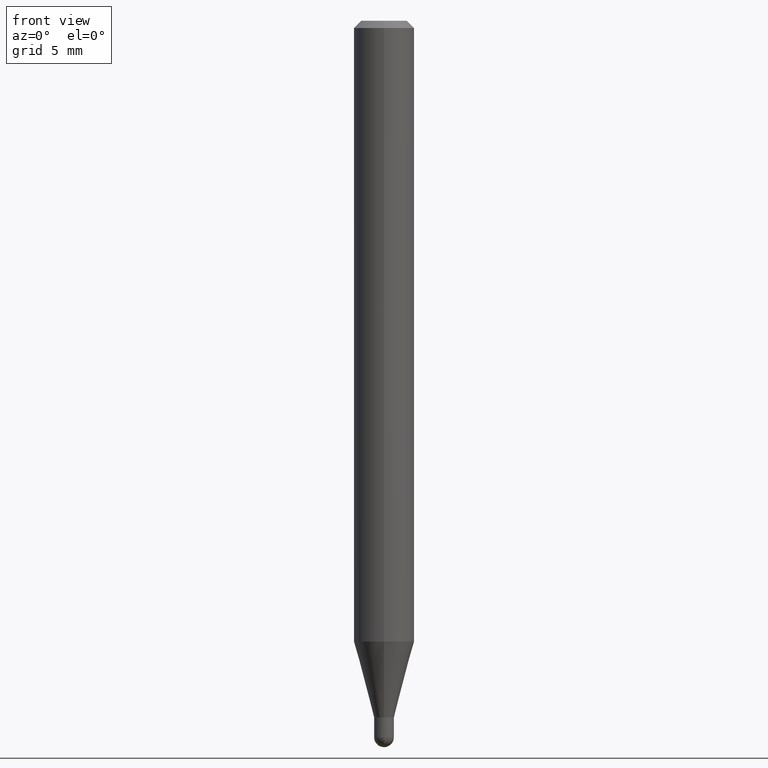
[diagram: clean part render]
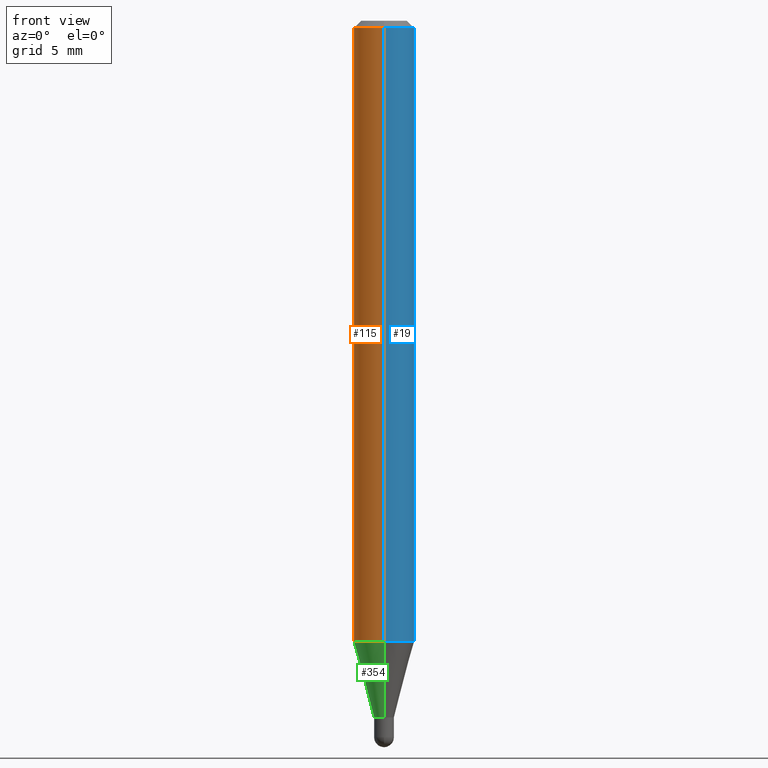
[diagram: same view with three faces highlighted in distinct colors, each labeled with its STEP entity id]
A machine part, front view with three faces highlighted in distinct colors.
Their STEP definitions:

[orange] entity #115 — the highlighted cylindrical surface (edge-blend (fillet) strip) has radius 1.5875 mm, axis along (-0, 0, 1).
#3 = EDGE_LOOP ( 'NONE', ( #249, #281, #219, #171 ) ) ;
#17 = CARTESIAN_POINT ( 'NONE',  ( -4.364351673553916201E-16, -0.06250000000000000000, 2.182166511817810202E-16 ) ) ;
#37 = DIRECTION ( 'NONE',  ( -6.982962677686265922E-15, -1.000000000000000000, 4.370956789862821150E-15 ) ) ;
#46 = DIRECTION ( 'NONE',  ( -6.982962677686265922E-15, -1.000000000000000000, 3.483106191921935554E-15 ) ) ;
#63 = CARTESIAN_POINT ( 'NONE',  ( 4.440892098500625669E-16, 0.06250000000000000000, -2.182166511817810202E-16 ) ) ;
#85 = EDGE_CURVE ( 'NONE', #479, #105, #495, .T. ) ;
#89 = DIRECTION ( 'NONE',  ( -2.445479224719817573E-29, 3.491466418908496323E-15, 1.000000000000000000 ) ) ;
#105 = VERTEX_POINT ( 'NONE', #389 ) ;
#108 = CARTESIAN_POINT ( 'NONE',  ( 0.000000000000000000, 0.000000000000000000, 0.000000000000000000 ) ) ;
#109 = CARTESIAN_POINT ( 'NONE',  ( 4.440892098500940720E-16, 0.06249999999999993755, -0.01500000000000022669 ) ) ;
#115 = ADVANCED_FACE ( 'NONE', ( #464 ), #431, .T. ) ;
#125 = VECTOR ( 'NONE', #190, 39.37007874015748143 ) ;
#147 = CARTESIAN_POINT ( 'NONE',  ( 3.134502450708113125E-29, -4.475200580731833085E-15, -1.281753866082112392 ) ) ;
#149 = AXIS2_PLACEMENT_3D ( 'NONE', #108, #386, #429 ) ;
#171 = ORIENTED_EDGE ( 'NONE', *, *, #218, .F. ) ;
#190 = DIRECTION ( 'NONE',  ( -2.445479224719817573E-29, 3.491466418908496323E-15, 1.000000000000000000 ) ) ;
#192 = AXIS2_PLACEMENT_3D ( 'NONE', #238, #89, #46 ) ;
#218 = EDGE_CURVE ( 'NONE', #487, #273, #239, .T. ) ;
#219 = ORIENTED_EDGE ( 'NONE', *, *, #477, .T. ) ;
#238 = CARTESIAN_POINT ( 'NONE',  ( 3.668218837079728952E-31, -5.237199628362747541E-17, -0.01500000000000000812 ) ) ;
#239 = CIRCLE ( 'NONE', #192, 0.06250000000000000000 ) ;
#249 = ORIENTED_EDGE ( 'NONE', *, *, #481, .F. ) ;
#262 = LINE ( 'NONE', #63, #125 ) ;
#273 = VERTEX_POINT ( 'NONE', #368 ) ;
#281 = ORIENTED_EDGE ( 'NONE', *, *, #85, .T. ) ;
#357 = AXIS2_PLACEMENT_3D ( 'NONE', #147, #468, #37 ) ;
#367 = LINE ( 'NONE', #17, #419 ) ;
#368 = CARTESIAN_POINT ( 'NONE',  ( -4.364351673553912750E-16, -0.06250000000000005551, -0.01499999999999979128 ) ) ;
#373 = DIRECTION ( 'NONE',  ( -2.445479224719817573E-29, 3.491466418908496323E-15, 1.000000000000000000 ) ) ;
#386 = DIRECTION ( 'NONE',  ( -2.445479224719817573E-29, 3.491466418908496323E-15, 1.000000000000000000 ) ) ;
#389 = CARTESIAN_POINT ( 'NONE',  ( -4.364351673553603122E-16, -0.06250000000000449640, -1.281753866082112170 ) ) ;
#419 = VECTOR ( 'NONE', #373, 39.37007874015748143 ) ;
#429 = DIRECTION ( 'NONE',  ( -6.982962677686265922E-15, -1.000000000000000000, 3.491466418908496323E-15 ) ) ;
#431 = CYLINDRICAL_SURFACE ( 'NONE', #149, 0.06250000000000000000 ) ;
#453 = CARTESIAN_POINT ( 'NONE',  ( 4.440892098500937762E-16, 0.06249999999999551054, -1.281753866082112836 ) ) ;
#464 = FACE_OUTER_BOUND ( 'NONE', #3, .T. ) ;
#468 = DIRECTION ( 'NONE',  ( -2.445479224719817573E-29, 3.491466418908496323E-15, 1.000000000000000000 ) ) ;
#477 = EDGE_CURVE ( 'NONE', #105, #273, #367, .T. ) ;
#479 = VERTEX_POINT ( 'NONE', #453 ) ;
#481 = EDGE_CURVE ( 'NONE', #479, #487, #262, .T. ) ;
#487 = VERTEX_POINT ( 'NONE', #109 ) ;
#495 = CIRCLE ( 'NONE', #357, 0.06250000000000000000 ) ;

[blue] entity #19 — the highlighted cylindrical surface (edge-blend (fillet) strip) has radius 1.5875 mm, axis along (-0, 0, 1).
#17 = CARTESIAN_POINT ( 'NONE',  ( -4.364351673553916201E-16, -0.06250000000000000000, 2.182166511817810202E-16 ) ) ;
#19 = ADVANCED_FACE ( 'NONE', ( #366 ), #258, .T. ) ;
#27 = CARTESIAN_POINT ( 'NONE',  ( 3.134502450708113125E-29, -4.475200580731833085E-15, -1.281753866082112392 ) ) ;
#40 = EDGE_CURVE ( 'NONE', #105, #479, #459, .T. ) ;
#63 = CARTESIAN_POINT ( 'NONE',  ( 4.440892098500625669E-16, 0.06250000000000000000, -2.182166511817810202E-16 ) ) ;
#86 = CIRCLE ( 'NONE', #498, 0.06250000000000000000 ) ;
#105 = VERTEX_POINT ( 'NONE', #389 ) ;
#109 = CARTESIAN_POINT ( 'NONE',  ( 4.440892098500940720E-16, 0.06249999999999993755, -0.01500000000000022669 ) ) ;
#125 = VECTOR ( 'NONE', #190, 39.37007874015748143 ) ;
#126 = EDGE_LOOP ( 'NONE', ( #286, #335, #168, #211 ) ) ;
#168 = ORIENTED_EDGE ( 'NONE', *, *, #505, .F. ) ;
#190 = DIRECTION ( 'NONE',  ( -2.445479224719817573E-29, 3.491466418908496323E-15, 1.000000000000000000 ) ) ;
#211 = ORIENTED_EDGE ( 'NONE', *, *, #477, .F. ) ;
#235 = DIRECTION ( 'NONE',  ( -6.982962677686265922E-15, -1.000000000000000000, 3.491466418908496323E-15 ) ) ;
#254 = CARTESIAN_POINT ( 'NONE',  ( 3.668218837079728952E-31, -5.237199628362747541E-17, -0.01500000000000000812 ) ) ;
#258 = CYLINDRICAL_SURFACE ( 'NONE', #307, 0.06250000000000000000 ) ;
#262 = LINE ( 'NONE', #63, #125 ) ;
#264 = DIRECTION ( 'NONE',  ( -6.982962677686265922E-15, -1.000000000000000000, 4.370956789862821150E-15 ) ) ;
#273 = VERTEX_POINT ( 'NONE', #368 ) ;
#286 = ORIENTED_EDGE ( 'NONE', *, *, #40, .T. ) ;
#294 = DIRECTION ( 'NONE',  ( -6.982962677686265922E-15, -1.000000000000000000, 3.483106191921935554E-15 ) ) ;
#302 = DIRECTION ( 'NONE',  ( -2.445479224719817573E-29, 3.491466418908496323E-15, 1.000000000000000000 ) ) ;
#307 = AXIS2_PLACEMENT_3D ( 'NONE', #341, #465, #235 ) ;
#327 = AXIS2_PLACEMENT_3D ( 'NONE', #27, #302, #264 ) ;
#335 = ORIENTED_EDGE ( 'NONE', *, *, #481, .T. ) ;
#341 = CARTESIAN_POINT ( 'NONE',  ( 0.000000000000000000, 0.000000000000000000, 0.000000000000000000 ) ) ;
#366 = FACE_OUTER_BOUND ( 'NONE', #126, .T. ) ;
#367 = LINE ( 'NONE', #17, #419 ) ;
#368 = CARTESIAN_POINT ( 'NONE',  ( -4.364351673553912750E-16, -0.06250000000000005551, -0.01499999999999979128 ) ) ;
#373 = DIRECTION ( 'NONE',  ( -2.445479224719817573E-29, 3.491466418908496323E-15, 1.000000000000000000 ) ) ;
#389 = CARTESIAN_POINT ( 'NONE',  ( -4.364351673553603122E-16, -0.06250000000000449640, -1.281753866082112170 ) ) ;
#419 = VECTOR ( 'NONE', #373, 39.37007874015748143 ) ;
#420 = DIRECTION ( 'NONE',  ( -2.445479224719817573E-29, 3.491466418908496323E-15, 1.000000000000000000 ) ) ;
#453 = CARTESIAN_POINT ( 'NONE',  ( 4.440892098500937762E-16, 0.06249999999999551054, -1.281753866082112836 ) ) ;
#459 = CIRCLE ( 'NONE', #327, 0.06250000000000000000 ) ;
#465 = DIRECTION ( 'NONE',  ( -2.445479224719817573E-29, 3.491466418908496323E-15, 1.000000000000000000 ) ) ;
#477 = EDGE_CURVE ( 'NONE', #105, #273, #367, .T. ) ;
#479 = VERTEX_POINT ( 'NONE', #453 ) ;
#481 = EDGE_CURVE ( 'NONE', #479, #487, #262, .T. ) ;
#487 = VERTEX_POINT ( 'NONE', #109 ) ;
#498 = AXIS2_PLACEMENT_3D ( 'NONE', #254, #420, #294 ) ;
#505 = EDGE_CURVE ( 'NONE', #273, #487, #86, .T. ) ;

[green] entity #354 — the highlighted conical surface has half-angle 15 deg.
#23 = ORIENTED_EDGE ( 'NONE', *, *, #34, .T. ) ;
#26 = AXIS2_PLACEMENT_3D ( 'NONE', #365, #166, #322 ) ;
#34 = EDGE_CURVE ( 'NONE', #209, #314, #439, .T. ) ;
#35 = EDGE_CURVE ( 'NONE', #314, #105, #183, .T. ) ;
#37 = DIRECTION ( 'NONE',  ( -6.982962677686265922E-15, -1.000000000000000000, 4.370956789862821150E-15 ) ) ;
#43 = VECTOR ( 'NONE', #339, 39.37007874015748143 ) ;
#49 = FACE_OUTER_BOUND ( 'NONE', #443, .T. ) ;
#76 = CONICAL_SURFACE ( 'NONE', #26, 0.02049999999999992106, 0.2617993877991575680 ) ;
#85 = EDGE_CURVE ( 'NONE', #479, #105, #495, .T. ) ;
#105 = VERTEX_POINT ( 'NONE', #389 ) ;
#107 = EDGE_CURVE ( 'NONE', #209, #479, #295, .T. ) ;
#147 = CARTESIAN_POINT ( 'NONE',  ( 3.134502450708113125E-29, -4.475200580731833085E-15, -1.281753866082112392 ) ) ;
#155 = AXIS2_PLACEMENT_3D ( 'NONE', #225, #501, #422 ) ;
#166 = DIRECTION ( 'NONE',  ( -2.445479224719817573E-29, 3.491466418908496323E-15, 1.000000000000000000 ) ) ;
#183 = LINE ( 'NONE', #346, #43 ) ;
#187 = CARTESIAN_POINT ( 'NONE',  ( 1.456612608308551308E-16, 0.02049999999999489730, -1.438500000000000556 ) ) ;
#209 = VERTEX_POINT ( 'NONE', #434 ) ;
#225 = CARTESIAN_POINT ( 'NONE',  ( 3.517821864759459632E-29, -5.022474443599874180E-15, -1.438500000000000556 ) ) ;
#295 = LINE ( 'NONE', #187, #425 ) ;
#314 = VERTEX_POINT ( 'NONE', #326 ) ;
#322 = DIRECTION ( 'NONE',  ( -6.982962677686265133E-15, -1.000000000000000000, 0.000000000000000000 ) ) ;
#326 = CARTESIAN_POINT ( 'NONE',  ( -1.431507348925326996E-16, -0.02050000000000494482, -1.438500000000000556 ) ) ;
#336 = ORIENTED_EDGE ( 'NONE', *, *, #85, .F. ) ;
#339 = DIRECTION ( 'NONE',  ( -1.807323732225379443E-15, -0.2588190451025252359, 0.9659258262890670910 ) ) ;
#346 = CARTESIAN_POINT ( 'NONE',  ( -1.431507348925326996E-16, -0.02050000000000494482, -1.438500000000000556 ) ) ;
#354 = ADVANCED_FACE ( 'NONE', ( #49 ), #76, .T. ) ;
#357 = AXIS2_PLACEMENT_3D ( 'NONE', #147, #468, #37 ) ;
#363 = ORIENTED_EDGE ( 'NONE', *, *, #35, .T. ) ;
#365 = CARTESIAN_POINT ( 'NONE',  ( 3.517821864759459632E-29, -5.022474443599874180E-15, -1.438500000000000556 ) ) ;
#377 = DIRECTION ( 'NONE',  ( 1.839019923739650408E-15, 0.2588190451025319527, 0.9659258262890650926 ) ) ;
#389 = CARTESIAN_POINT ( 'NONE',  ( -4.364351673553603122E-16, -0.06250000000000449640, -1.281753866082112170 ) ) ;
#422 = DIRECTION ( 'NONE',  ( -6.982962677686265133E-15, -1.000000000000000000, 0.000000000000000000 ) ) ;
#425 = VECTOR ( 'NONE', #377, 39.37007874015748854 ) ;
#434 = CARTESIAN_POINT ( 'NONE',  ( 2.948752353404746261E-16, 0.02049999999999489730, -1.438500000000000556 ) ) ;
#439 = CIRCLE ( 'NONE', #155, 0.02049999999999992106 ) ;
#443 = EDGE_LOOP ( 'NONE', ( #497, #23, #363, #336 ) ) ;
#453 = CARTESIAN_POINT ( 'NONE',  ( 4.440892098500937762E-16, 0.06249999999999551054, -1.281753866082112836 ) ) ;
#468 = DIRECTION ( 'NONE',  ( -2.445479224719817573E-29, 3.491466418908496323E-15, 1.000000000000000000 ) ) ;
#479 = VERTEX_POINT ( 'NONE', #453 ) ;
#495 = CIRCLE ( 'NONE', #357, 0.06250000000000000000 ) ;
#497 = ORIENTED_EDGE ( 'NONE', *, *, #107, .F. ) ;
#501 = DIRECTION ( 'NONE',  ( -2.445479224719817573E-29, 3.491466418908496323E-15, 1.000000000000000000 ) ) ;